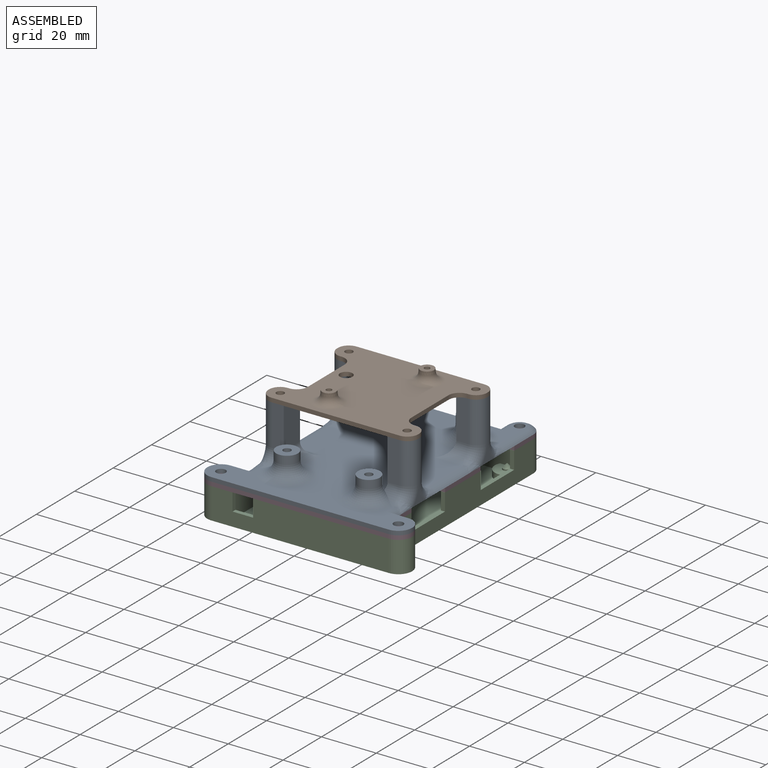
[diagram: assembled view]
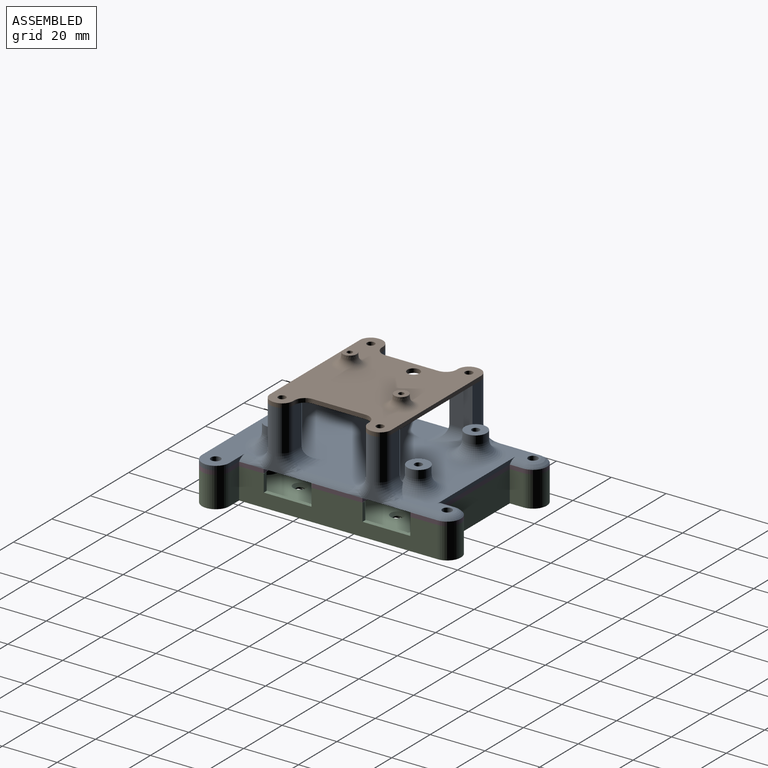
[diagram: assembled view, second angle]
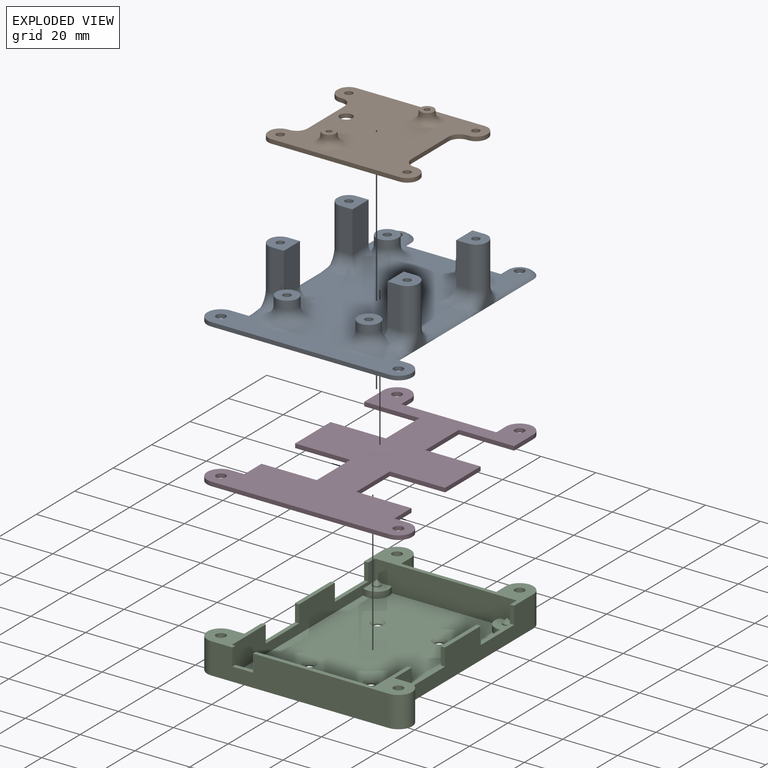
[diagram: exploded view]
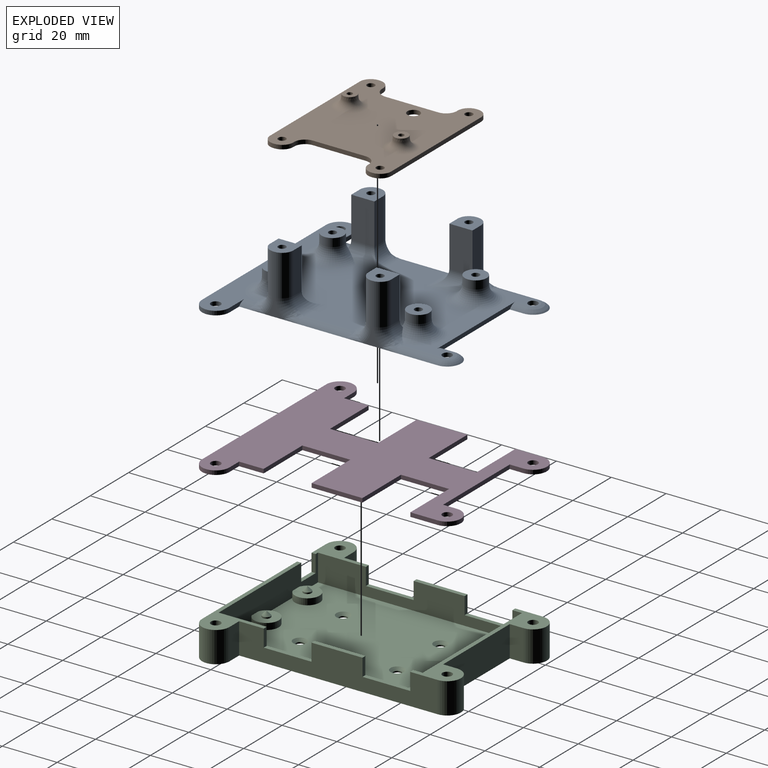
[diagram: exploded view, second angle]
ASSEMBLY  parts=4 mates=3
PART A: 106 faces, bbox 75.2x87.9x24.7 mm
  f0: plane 21.5x5.98mm, normal (-1,0,0), area 20.5mm2, adj f7,f48,f85,f86,f96,f97
  f1: plane 21.5x5.98mm, normal (1,0,0), area 20.5mm2, adj f7,f42,f83,f84,f98,f99
  f2: plane 84.28x74.71mm, normal (0,0,1), area 2554.3mm2, adj f3,f5,f8,f9,f10,f11,f12,f13
  f3: plane 40.95x1.5mm, normal (0,1,0), area 54.9mm2, adj f2,f7,f77,f90
  f4: plane 21.5x5.98mm, normal (-1,0,0), area 20.5mm2, adj f7,f36,f91,f92,f102,f103
  f5: plane 64.71x1.5mm, normal (0,-1,0), area 97.1mm2, adj f2,f7,f8,f14
  f6: plane 21.5x5.98mm, normal (1,0,0), area 20.5mm2, adj f7,f54,f72,f73,f78,f79
  f7: plane 87.89x75.2mm, normal (0,0,-1), area 4553mm2, adj f0,f1,f3,f4,f5,f6,f8,f9
  f8: cylinder r=5mm len=10mm, axis (0,0,-1), area 23.6mm2, adj f2,f5,f7,f9
  f9: plane 8.12x1.5mm, normal (0,1,0), area 8.9mm2, adj f2,f7,f8,f105
  f10: cylinder r=1.75mm len=3.5mm, axis (0,0,-1), area 16.5mm2, adj f2,f7
  f11: cylinder r=1.75mm len=3.5mm, axis (0,0,-1), area 16.5mm2, adj f2,f7
  f12: plane 8.12x1.5mm, normal (0,1,0), area 8.9mm2, adj f2,f7,f14,f101
  f13: cylinder r=1.75mm len=3.5mm, axis (0,0,-1), area 16.5mm2, adj f2,f7
  f14: cylinder r=5mm len=10mm, axis (0,0,-1), area 23.6mm2, adj f2,f5,f7,f12
  f15: cylinder r=1.75mm len=3.5mm, axis (0,0,-1), area 16.5mm2, adj f2,f7
  f16: cylinder r=1.4mm len=8mm, axis (0,0,-1), area 70.4mm2, adj f18,f19
  f17: cylinder r=4mm len=8mm, axis (0,0,-1), area 75.4mm2, adj f18,f61
  f18: plane 8x8mm, normal (0,0,1), area 44.1mm2, adj f16,f17
  f19: plane 2.8x2.8mm, normal (0,0,1), area 6.2mm2, adj f16
  f20: cylinder r=1.4mm len=8mm, axis (0,0,-1), area 70.4mm2, adj f22,f23
  f21: cylinder r=4mm len=8mm, axis (0,0,-1), area 75.4mm2, adj f22,f68
  f22: plane 8x8mm, normal (0,0,1), area 44.1mm2, adj f20,f21
  f23: plane 2.8x2.8mm, normal (0,0,1), area 6.2mm2, adj f20
  f24: cylinder r=4mm len=8mm, axis (0,0,-1), area 75.4mm2, adj f26,f56
  f25: cylinder r=1.4mm len=8mm, axis (0,0,-1), area 70.4mm2, adj f26,f27
  f26: plane 8x8mm, normal (0,0,1), area 44.1mm2, adj f24,f25
  f27: plane 2.8x2.8mm, normal (0,0,1), area 6.2mm2, adj f25
  f28: cylinder r=4mm len=8mm, axis (0,0,-1), area 75.4mm2, adj f30,f65
  f29: cylinder r=1.4mm len=8mm, axis (0,0,-1), area 70.4mm2, adj f30,f31
  f30: plane 8x8mm, normal (0,0,1), area 44.1mm2, adj f28,f29
  f31: plane 2.8x2.8mm, normal (0,0,1), area 6.2mm2, adj f29
  f32: plane 15x8.43mm, normal (1,0,0), area 126.5mm2, adj f33,f35,f36,f70
  f33: plane 15x4.43mm, normal (0,1,0), area 66.5mm2, adj f32,f36,f71,f91
  f34: cylinder r=1.4mm len=20mm, axis (0,0,-1), area 175.9mm2, adj f36,f37
  f35: plane 15x4.43mm, normal (0,-1,0), area 66.5mm2, adj f32,f36,f69,f102
  f36: plane 8.43x8.43mm, normal (0,0,1), area 58.1mm2, adj f4,f32,f33,f34,f35,f91,f102
  f37: plane 2.8x2.8mm, normal (0,0,1), area 6.2mm2, adj f34
  f38: plane 15x8.43mm, normal (-1,0,0), area 126.5mm2, adj f39,f40,f42,f66
  f39: plane 15x4.43mm, normal (0,-1,0), area 66.5mm2, adj f38,f42,f64,f98
  f40: plane 15x4.43mm, normal (0,1,0), area 66.5mm2, adj f38,f42,f67,f84
  f41: cylinder r=1.4mm len=20mm, axis (0,0,-1), area 175.9mm2, adj f42,f43
  f42: plane 8.43x8.43mm, normal (0,0,1), area 58.1mm2, adj f1,f38,f39,f40,f41,f84,f98
  f43: plane 2.8x2.8mm, normal (0,0,1), area 6.2mm2, adj f41
  f44: plane 15x4.43mm, normal (0,-1,0), area 66.5mm2, adj f45,f48,f62,f97
  f45: plane 15x8.43mm, normal (1,0,0), area 126.5mm2, adj f44,f46,f48,f63
  f46: plane 15x4.43mm, normal (0,1,0), area 66.5mm2, adj f45,f48,f60,f85
  f47: cylinder r=1.4mm len=20mm, axis (0,0,-1), area 175.9mm2, adj f48,f49
  f48: plane 8.43x8.43mm, normal (0,0,1), area 58.1mm2, adj f0,f44,f45,f46,f47,f85,f97
  f49: plane 2.8x2.8mm, normal (0,0,1), area 6.2mm2, adj f47
  f50: plane 15x8.43mm, normal (-1,0,0), area 126.5mm2, adj f51,f53,f54,f58
  f51: plane 15x4.43mm, normal (0,-1,0), area 66.5mm2, adj f50,f54,f59,f78
  f52: cylinder r=1.4mm len=20mm, axis (0,0,-1), area 175.9mm2, adj f54,f55
  f53: plane 15x4.43mm, normal (0,1,0), area 66.5mm2, adj f50,f54,f57,f72
  f54: plane 8.43x8.43mm, normal (0,0,1), area 58.1mm2, adj f6,f50,f51,f52,f53,f72,f78
  f55: plane 2.8x2.8mm, normal (0,0,1), area 6.2mm2, adj f52
  f56: torus R=9mm, axis (0,0,1), area 249.2mm2, adj f2,f24,f57,f58
  f57: cylinder r=5mm len=6mm, axis (-1,0,0), area 26mm2, adj f2,f53,f56,f58,f73,f74
  f58: cylinder r=5mm len=14.12mm, axis (0,-1,0), area 70.3mm2, adj f2,f50,f56,f57,f59
  f59: cylinder r=5mm len=10.31mm, axis (1,0,0), area 50.8mm2, adj f2,f51,f58,f79,f80
  f60: cylinder r=5mm len=6mm, axis (-1,0,0), area 26.3mm2, adj f2,f46,f61,f63,f86,f87
  f61: torus R=9mm, axis (0,0,1), area 247.9mm2, adj f2,f17,f60,f63
  f62: cylinder r=5mm len=10.31mm, axis (1,0,0), area 50.8mm2, adj f2,f44,f63,f95,f96
  f63: cylinder r=5mm len=14.12mm, axis (0,1,0), area 70.3mm2, adj f2,f45,f60,f61,f62
  f64: cylinder r=5mm len=6mm, axis (1,0,0), area 26mm2, adj f2,f39,f65,f66,f99,f100
  f65: torus R=9mm, axis (0,0,1), area 249.2mm2, adj f2,f28,f64,f66
  f66: cylinder r=5mm len=14.12mm, axis (0,-1,0), area 70.3mm2, adj f2,f38,f64,f65,f67
  f67: cylinder r=5mm len=10.31mm, axis (-1,0,0), area 50.8mm2, adj f2,f40,f66,f82,f83
  f68: torus R=9mm, axis (0,0,1), area 247.9mm2, adj f2,f21,f69,f70
  f69: cylinder r=5mm len=6mm, axis (1,0,0), area 26.3mm2, adj f2,f35,f68,f70,f103,f104
  f70: cylinder r=5mm len=14.12mm, axis (0,1,0), area 70.3mm2, adj f2,f32,f68,f69,f71
  f71: cylinder r=5mm len=10.31mm, axis (-1,0,0), area 50.8mm2, adj f2,f33,f70,f92,f93
  f72: cylinder r=4mm len=15mm, axis (0,0,1), area 94.2mm2, adj f6,f53,f54,f73
  f73: torus R=9mm, axis (-1,0,0), area 32.7mm2, adj f6,f57,f72,f74
  f74: bspline ~7.6x4.42mm, area 20mm2, adj f7,f57,f73,f75
  f75: cylinder r=4mm len=14.7mm, axis (0,1,0), area 52.7mm2, adj f2,f7,f74,f76
  f76: torus R=1.88mm, axis (0,0,-1), area 40mm2, adj f2,f7,f75,f77
  f77: cylinder r=4mm len=5mm, axis (0,-1,0), area 17.9mm2, adj f2,f3,f7,f76
  f78: cylinder r=4mm len=15mm, axis (0,0,-1), area 94.2mm2, adj f6,f51,f54,f79
  f79: torus R=9mm, axis (-1,0,0), area 32.7mm2, adj f6,f59,f78,f80
  f80: bspline ~7.42x4.3mm, area 20mm2, adj f7,f59,f79,f81
  f81: cylinder r=4mm len=17.32mm, axis (0,1,0), area 62.1mm2, adj f2,f7,f80,f82
  f82: bspline ~7.42x4.3mm, area 20mm2, adj f7,f67,f81,f83
  f83: torus R=9mm, axis (-1,0,0), area 32.7mm2, adj f1,f67,f82,f84
  f84: cylinder r=4mm len=15mm, axis (0,0,1), area 94.2mm2, adj f1,f40,f42,f83
  f85: cylinder r=4mm len=15mm, axis (0,0,1), area 94.2mm2, adj f0,f46,f48,f86
  f86: torus R=9mm, axis (-1,0,0), area 32.7mm2, adj f0,f60,f85,f87
  f87: bspline ~7.6x4.42mm, area 20mm2, adj f7,f60,f86,f88
  f88: cylinder r=4mm len=14.7mm, axis (0,1,0), area 52.7mm2, adj f2,f7,f87,f89
  f89: torus R=1.88mm, axis (0,0,-1), area 40mm2, adj f2,f7,f88,f90
  f90: cylinder r=4mm len=5mm, axis (0,-1,0), area 17.9mm2, adj f2,f3,f7,f89
  f91: cylinder r=4mm len=15mm, axis (0,0,1), area 94.2mm2, adj f4,f33,f36,f92
  f92: torus R=9mm, axis (-1,0,0), area 32.7mm2, adj f4,f71,f91,f93
  f93: bspline ~7.42x4.3mm, area 20mm2, adj f7,f71,f92,f94
  f94: cylinder r=4mm len=17.32mm, axis (0,1,0), area 62.1mm2, adj f2,f7,f93,f95
  f95: bspline ~7.42x4.3mm, area 20mm2, adj f7,f62,f94,f96
  f96: torus R=9mm, axis (-1,0,0), area 32.7mm2, adj f0,f62,f95,f97
  f97: cylinder r=4mm len=15mm, axis (0,0,-1), area 94.2mm2, adj f0,f44,f48,f96
  f98: cylinder r=4mm len=15mm, axis (0,0,-1), area 94.2mm2, adj f1,f39,f42,f99
  f99: torus R=9mm, axis (-1,0,0), area 32.7mm2, adj f1,f64,f98,f100
  f100: bspline ~7.6x4.42mm, area 20mm2, adj f7,f64,f99,f101
  f101: cylinder r=4mm len=3.51mm, axis (0,1,0), area 12.6mm2, adj f2,f7,f12,f100
  f102: cylinder r=4mm len=15mm, axis (0,0,-1), area 94.2mm2, adj f4,f35,f36,f103
  f103: torus R=9mm, axis (-1,0,0), area 32.7mm2, adj f4,f69,f102,f104
  f104: bspline ~7.6x4.42mm, area 20mm2, adj f7,f69,f103,f105
  f105: cylinder r=4mm len=3.51mm, axis (0,1,0), area 12.6mm2, adj f2,f7,f9,f104
PART B: 39 faces, bbox 54.7x46.1x5.5 mm
  f0: plane 1.5x0.43mm, normal (-1,0,0), area 0.7mm2, adj f4,f5,f29,f32
  f1: plane 1.5x0.43mm, normal (-1,0,0), area 0.7mm2, adj f4,f5,f21,f28
  f2: plane 1.5x0.43mm, normal (1,0,0), area 0.7mm2, adj f4,f5,f24,f31
  f3: plane 1.5x0.43mm, normal (1,0,0), area 0.7mm2, adj f4,f5,f22,f23
  f4: plane 54.71x44.19mm, normal (0,0,1), area 1705.4mm2, adj f0,f1,f2,f3,f7,f8,f9,f10
  f5: plane 54.71x44.19mm, normal (0,0,-1), area 1896.1mm2, adj f0,f1,f2,f3,f6,f7,f8,f9
  f6: cylinder r=1mm len=5.5mm, axis (0,0,1), area 34.6mm2, adj f5,f34
  f7: cylinder r=1.4mm len=2.8mm, axis (0,0,1), area 13.2mm2, adj f4,f5
  f8: cylinder r=1.4mm len=2.8mm, axis (0,0,1), area 13.2mm2, adj f4,f5
  f9: cylinder r=1.4mm len=2.8mm, axis (0,0,1), area 13.2mm2, adj f4,f5
  f10: plane 19.32x1.5mm, normal (-1,0,0), area 29mm2, adj f4,f5,f27,f30
  f11: plane 1.5x0.43mm, normal (0,-1,0), area 0.7mm2, adj f4,f5,f27,f28
  f12: plane 1.5x0.43mm, normal (0,1,0), area 0.7mm2, adj f4,f5,f29,f30
  f13: plane 1.5x0.43mm, normal (0,-1,0), area 0.7mm2, adj f4,f5,f23,f26
  f14: plane 19.32x1.5mm, normal (1,0,0), area 29mm2, adj f4,f5,f25,f26
  f15: plane 1.5x0.43mm, normal (0,1,0), area 0.7mm2, adj f4,f5,f24,f25
  f16: plane 46.71x1.5mm, normal (0,1,0), area 70.1mm2, adj f4,f5,f21,f22
  f17: cylinder r=1.4mm len=2.8mm, axis (0,0,1), area 13.2mm2, adj f4,f5
  f18: cylinder r=1mm len=5.5mm, axis (0,0,1), area 34.6mm2, adj f5,f33
  f19: cylinder r=2.25mm len=4.5mm, axis (0,0,1), area 21.2mm2, adj f4,f5
  f20: plane 46.71x1.5mm, normal (0,-1,0), area 70.1mm2, adj f4,f5,f31,f32
  f21: cylinder r=4mm len=4mm, axis (0,0,-1), area 9.4mm2, adj f1,f4,f5,f16
  f22: cylinder r=4mm len=4mm, axis (0,0,1), area 9.4mm2, adj f3,f4,f5,f16
  f23: cylinder r=4mm len=4mm, axis (0,0,-1), area 9.4mm2, adj f3,f4,f5,f13
  f24: cylinder r=4mm len=4mm, axis (0,0,1), area 9.4mm2, adj f2,f4,f5,f15
  f25: cylinder r=4mm len=4mm, axis (0,0,-1), area 9.4mm2, adj f4,f5,f14,f15
  f26: cylinder r=4mm len=4mm, axis (0,0,1), area 9.4mm2, adj f4,f5,f13,f14
  f27: cylinder r=4mm len=4mm, axis (0,0,1), area 9.4mm2, adj f4,f5,f10,f11
  f28: cylinder r=4mm len=4mm, axis (0,0,-1), area 9.4mm2, adj f1,f4,f5,f11
  f29: cylinder r=4mm len=4mm, axis (0,0,1), area 9.4mm2, adj f0,f4,f5,f12
  f30: cylinder r=4mm len=4mm, axis (0,0,-1), area 9.4mm2, adj f4,f5,f10,f12
  f31: cylinder r=4mm len=4mm, axis (0,0,-1), area 9.4mm2, adj f2,f4,f5,f20
  f32: cylinder r=4mm len=4mm, axis (0,0,1), area 9.4mm2, adj f0,f4,f5,f20
  f33: plane 5x5mm, normal (0,0,1), area 16.5mm2, adj f18,f36
  f34: plane 5x5mm, normal (0,0,1), area 16.5mm2, adj f6,f35
  f35: cone r=2.5mm half-angle=5deg, axis (0,0,-1), area 20.3mm2, adj f34,f38
  f36: cone r=2.5mm half-angle=5deg, axis (0,0,-1), area 20.3mm2, adj f33,f37
  f37: torus R=5.6mm, axis (0,0,1), area 104.9mm2, adj f4,f36
  f38: torus R=5.6mm, axis (0,0,1), area 104.9mm2, adj f4,f35
PART C: 72 faces, bbox 74.7x87.4x11.3 mm
  f0: plane 54.51x19mm, normal (0,0,1), area 172.7mm2, adj f1,f2,f6,f12,f20,f53,f54,f55
  f1: plane 51.71x9.8mm, normal (0,1,0), area 434.6mm2, adj f0,f4,f5,f6,f7,f13,f32,f33
  f2: plane 64.71x11.3mm, normal (0,-1,0), area 684mm2, adj f0,f7,f14,f48,f55,f69,f70,f71
  f3: plane 34.71x11.3mm, normal (0,1,0), area 392.2mm2, adj f8,f14,f50,f56
  f4: plane 74.4x51.71mm, normal (0,0,1), area 3517.7mm2, adj f1,f6,f13,f15,f28,f30,f33,f35
  f5: plane 0.28x0.13mm, normal (0,0,1), area 0mm2, adj f1,f6,f36
  f6: plane 74.4x9.8mm, normal (-1,0,0), area 477.6mm2, adj f0,f1,f4,f5,f8,f9,f15,f16
  f7: plane 19x12.7mm, normal (0,0,1), area 109.9mm2, adj f1,f2,f11,f13,f24,f47,f48,f49
  f8: plane 54.71x15mm, normal (0,0,1), area 251.9mm2, adj f3,f6,f11,f12,f13,f15,f18,f26
  f9: plane 18.6x1.5mm, normal (0,0,1), area 27.9mm2, adj f6,f12,f17,f21
  f10: plane 18.6x1.5mm, normal (0,0,1), area 27.9mm2, adj f11,f13,f23,f27
  f11: plane 72.4x11.3mm, normal (-1,0,0), area 598.9mm2, adj f7,f8,f10,f14,f22,f23,f24,f25
  f12: plane 72.4x11.3mm, normal (1,0,0), area 598.9mm2, adj f0,f8,f9,f14,f16,f17,f18,f19
  f13: plane 74.4x9.8mm, normal (1,0,0), area 495.9mm2, adj f1,f4,f7,f8,f10,f15,f22,f23
  f14: plane 87.4x74.71mm, normal (0,0,-1), area 4524.7mm2, adj f2,f3,f11,f12,f39,f40,f41,f42
  f15: plane 51.71x9.8mm, normal (0,-1,0), area 478.8mm2, adj f4,f6,f8,f13,f28,f29,f30,f31
  f16: plane 17.4x1.5mm, normal (0,0,1), area 26.1mm2, adj f6,f12,f17,f18
  f17: plane 6.3x1.5mm, normal (0,1,0), area 9.5mm2, adj f6,f9,f12,f16
  f18: plane 6.3x1.5mm, normal (0,-1,0), area 9.5mm2, adj f6,f8,f12,f16
  f19: plane 17.4x1.5mm, normal (0,0,1), area 26.1mm2, adj f6,f12,f20,f21
  f20: plane 6.3x1.5mm, normal (0,1,0), area 9.5mm2, adj f0,f6,f12,f19
  f21: plane 6.3x1.5mm, normal (0,-1,0), area 9.5mm2, adj f6,f9,f12,f19
  f22: plane 17.4x1.5mm, normal (0,0,1), area 26.1mm2, adj f11,f13,f23,f24
  f23: plane 6.3x1.5mm, normal (0,-1,0), area 9.5mm2, adj f10,f11,f13,f22
  f24: plane 6.3x1.5mm, normal (0,1,0), area 9.4mm2, adj f7,f11,f13,f22
  f25: plane 17.4x1.5mm, normal (0,0,1), area 26.1mm2, adj f11,f13,f26,f27
  f26: plane 6.3x1.5mm, normal (0,-1,0), area 9.4mm2, adj f8,f11,f13,f25
  f27: plane 6.3x1.5mm, normal (0,1,0), area 9.4mm2, adj f10,f11,f13,f25
  f28: cylinder r=4.5mm len=6.58mm, axis (0,0,-1), area 26.2mm2, adj f4,f13,f15,f29
  f29: plane 6.58x6.58mm, normal (0,0,1), area 31.2mm2, adj f13,f15,f28,f63
  f30: cylinder r=4.5mm len=6.58mm, axis (0,0,-1), area 26.2mm2, adj f4,f6,f15,f31
  f31: plane 6.58x6.58mm, normal (0,0,1), area 31.2mm2, adj f6,f15,f30,f62
  f32: plane 9x8.62mm, normal (0,0,1), area 55.6mm2, adj f1,f33,f61
  f33: cylinder r=4.5mm len=9mm, axis (0,0,-1), area 56.5mm2, adj f1,f4,f32
  f34: plane 9x8.62mm, normal (0,0,1), area 55.6mm2, adj f1,f35,f60
  f35: cylinder r=4.5mm len=9mm, axis (0,0,-1), area 56.5mm2, adj f1,f4,f34
  f36: cylinder r=4.5mm len=2.3mm, axis (0,0,-1), area 0.7mm2, adj f1,f5,f6,f37
  f37: plane 8.62x6.58mm, normal (0,0,1), area 41.9mm2, adj f1,f6,f36,f38,f59
  f38: cylinder r=4.5mm len=8.62mm, axis (0,0,-1), area 33.2mm2, adj f1,f4,f6,f37
  f39: cylinder r=1.5mm len=3mm, axis (0,0,-1), area 4.7mm2, adj f14,f45
  f40: cylinder r=1.5mm len=3mm, axis (0,0,-1), area 4.7mm2, adj f14,f43
  f41: cylinder r=1.5mm len=3mm, axis (0,0,-1), area 4.7mm2, adj f14,f44
  f42: cylinder r=1.5mm len=3mm, axis (0,0,-1), area 4.7mm2, adj f14,f46
  f43: cone r=1.5mm half-angle=45deg, axis (0,0,1), area 17.8mm2, adj f4,f40
  f44: cone r=1.5mm half-angle=45deg, axis (0,0,1), area 17.8mm2, adj f4,f41
  f45: cone r=1.5mm half-angle=45deg, axis (0,0,1), area 17.8mm2, adj f4,f39
  f46: cone r=1.5mm half-angle=45deg, axis (0,0,1), area 17.8mm2, adj f4,f42
  f47: plane 11.3x5mm, normal (0,1,0), area 56.5mm2, adj f7,f11,f14,f48
  f48: cylinder r=5mm len=11.3mm, axis (0,0,-1), area 177.5mm2, adj f2,f7,f14,f47
  f49: cylinder r=1.75mm len=11.3mm, axis (0,0,-1), area 124.2mm2, adj f7,f14
  f50: plane 11.3x5mm, normal (1,0,0), area 56.5mm2, adj f3,f8,f14,f51
  f51: cylinder r=5mm len=11.3mm, axis (0,0,-1), area 177.5mm2, adj f8,f11,f14,f50
  f52: cylinder r=1.75mm len=11.3mm, axis (0,0,-1), area 124.2mm2, adj f8,f14
  f53: plane 11.3x5mm, normal (0,1,0), area 56.5mm2, adj f0,f12,f14,f55
  f54: cylinder r=1.75mm len=11.3mm, axis (0,0,-1), area 124.2mm2, adj f0,f14
  f55: cylinder r=5mm len=11.3mm, axis (0,0,-1), area 177.5mm2, adj f0,f2,f14,f53
  f56: plane 11.3x5mm, normal (-1,0,0), area 56.5mm2, adj f3,f8,f14,f58
  f57: cylinder r=1.75mm len=11.3mm, axis (0,0,-1), area 124.2mm2, adj f8,f14
  f58: cylinder r=5mm len=11.3mm, axis (0,0,-1), area 177.5mm2, adj f8,f12,f14,f56
  f59: cylinder r=1.5mm len=3mm, axis (0,0,-1), area 4.7mm2, adj f37,f68
  f60: cylinder r=1.5mm len=3mm, axis (0,0,-1), area 4.7mm2, adj f34,f67
  f61: cylinder r=1.5mm len=3mm, axis (0,0,-1), area 4.7mm2, adj f32,f66
  f62: cylinder r=1.5mm len=3mm, axis (0,0,-1), area 4.7mm2, adj f31,f65
  f63: cylinder r=1.5mm len=3mm, axis (0,0,-1), area 4.7mm2, adj f29,f64
  f64: cone r=1.5mm half-angle=45deg, axis (0,0,-1), area 10mm2, adj f63
  f65: cone r=1.5mm half-angle=45deg, axis (0,0,-1), area 10mm2, adj f62
  f66: cone r=1.5mm half-angle=45deg, axis (0,0,-1), area 10mm2, adj f61
  f67: cone r=1.5mm half-angle=45deg, axis (0,0,-1), area 10mm2, adj f60
  f68: cone r=1.5mm half-angle=45deg, axis (0,0,-1), area 10mm2, adj f59
  f69: plane 7.5x1.5mm, normal (0,0,1), area 11.2mm2, adj f1,f2,f70,f71
  f70: plane 6.3x1.5mm, normal (-1,0,0), area 9.4mm2, adj f0,f1,f2,f69
  f71: plane 6.3x1.5mm, normal (1,0,0), area 9.4mm2, adj f1,f2,f7,f69
PART D: 34 faces, bbox 74.7x87.4x1.5 mm
  f0: plane 9.95x1.5mm, normal (-1,0,0), area 14.9mm2, adj f4,f5,f13,f30
  f1: plane 18.5x1.5mm, normal (-1,0,0), area 27.7mm2, adj f4,f5,f23,f29
  f2: plane 8.95x1.5mm, normal (1,0,0), area 13.4mm2, adj f4,f5,f16,f31
  f3: plane 18.5x1.5mm, normal (1,0,0), area 27.7mm2, adj f4,f5,f25,f32
  f4: plane 87.4x74.71mm, normal (0,0,1), area 3142.5mm2, adj f0,f1,f2,f3,f6,f7,f8,f9
  f5: plane 87.4x74.71mm, normal (0,0,-1), area 3142.5mm2, adj f0,f1,f2,f3,f6,f7,f8,f9
  f6: plane 34.71x1.5mm, normal (0,1,0), area 52.1mm2, adj f4,f5,f14,f19
  f7: plane 8.95x1.5mm, normal (-1,0,0), area 13.4mm2, adj f4,f5,f11,f24
  f8: plane 64.71x1.5mm, normal (0,-1,0), area 97.1mm2, adj f4,f5,f10,f18
  f9: plane 9.95x1.5mm, normal (1,0,0), area 14.9mm2, adj f4,f5,f21,f26
  f10: cylinder r=5mm len=10mm, axis (0,0,-1), area 23.6mm2, adj f4,f5,f8,f11
  f11: plane 5x1.5mm, normal (0,1,0), area 7.5mm2, adj f4,f5,f7,f10
  f12: cylinder r=1.75mm len=3.5mm, axis (0,0,-1), area 16.5mm2, adj f4,f5
  f13: cylinder r=5mm len=10mm, axis (0,0,-1), area 23.6mm2, adj f0,f4,f5,f14
  f14: plane 5x1.5mm, normal (1,0,0), area 7.5mm2, adj f4,f5,f6,f13
  f15: cylinder r=1.75mm len=3.5mm, axis (0,0,-1), area 16.5mm2, adj f4,f5
  f16: plane 5x1.5mm, normal (0,1,0), area 7.5mm2, adj f2,f4,f5,f18
  f17: cylinder r=1.75mm len=3.5mm, axis (0,0,-1), area 16.5mm2, adj f4,f5
  f18: cylinder r=5mm len=10mm, axis (0,0,-1), area 23.6mm2, adj f4,f5,f8,f16
  f19: plane 5x1.5mm, normal (-1,0,0), area 7.5mm2, adj f4,f5,f6,f21
  f20: cylinder r=1.75mm len=3.5mm, axis (0,0,-1), area 16.5mm2, adj f4,f5
  f21: cylinder r=5mm len=10mm, axis (0,0,-1), area 23.6mm2, adj f4,f5,f9,f19
  f22: plane 17.5x1.5mm, normal (-1,0,0), area 26.3mm2, adj f4,f5,f23,f24
  f23: plane 20.15x1.5mm, normal (0,-1,0), area 30.2mm2, adj f1,f4,f5,f22
  f24: plane 20.15x1.5mm, normal (0,1,0), area 30.2mm2, adj f4,f5,f7,f22
  f25: plane 20.15x1.5mm, normal (0,1,0), area 30.2mm2, adj f3,f4,f5,f27
  f26: plane 20.15x1.5mm, normal (0,-1,0), area 30.2mm2, adj f4,f5,f9,f27
  f27: plane 17.5x1.5mm, normal (1,0,0), area 26.3mm2, adj f4,f5,f25,f26
  f28: plane 17.5x1.5mm, normal (-1,0,0), area 26.3mm2, adj f4,f5,f29,f30
  f29: plane 20.15x1.5mm, normal (0,1,0), area 30.2mm2, adj f1,f4,f5,f28
  f30: plane 20.15x1.5mm, normal (0,-1,0), area 30.2mm2, adj f0,f4,f5,f28
  f31: plane 20.15x1.5mm, normal (0,1,0), area 30.2mm2, adj f2,f4,f5,f33
  f32: plane 20.15x1.5mm, normal (0,-1,0), area 30.2mm2, adj f3,f4,f5,f33
  f33: plane 17.5x1.5mm, normal (1,0,0), area 26.3mm2, adj f4,f5,f31,f32
PLACE A t=(-42.84,-44.85,31.44)mm
PLACE B t=(-42.84,-44.85,52.94)mm
PLACE C t=(-42.84,-44.85,18.64)mm fixed
PLACE D t=(-42.84,-44.85,29.94)mm
MATE fastened B.f17 <-> A.f34  axis (0,0,1) through (-40.33,-23.82,52.94)mm
MATE fastened D.f17 <-> C.f54  axis (0,0,-1) through (15.16,-41.55,29.94)mm
MATE fastened D.f17 <-> A.f13  axis (0,0,1) through (15.16,-41.55,31.44)mm
